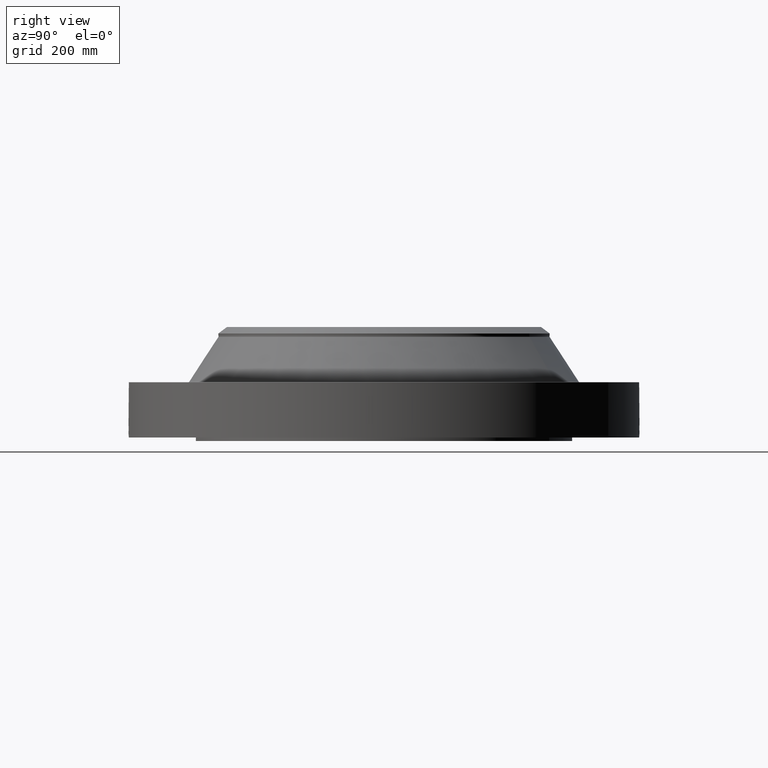
[diagram: clean part render]
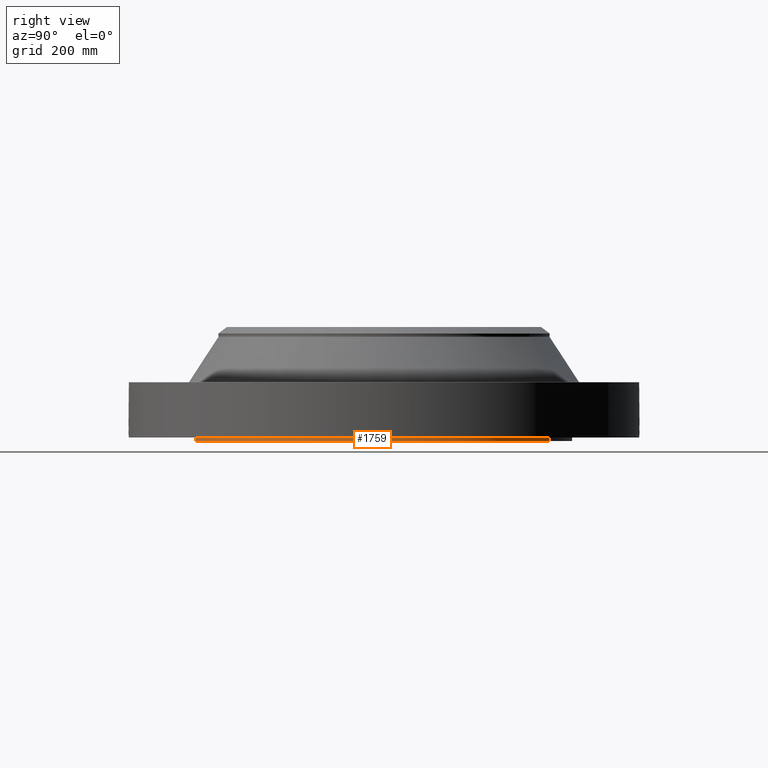
[diagram: same view with one face highlighted and labeled with its STEP entity id]
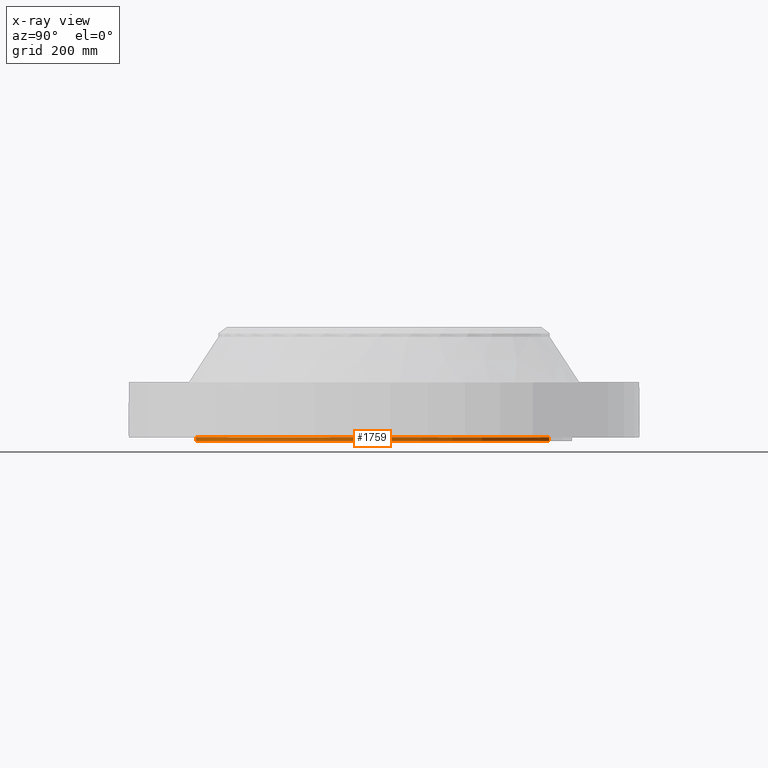
[diagram: x-ray of the same camera — body ghosted, the highlighted face saturated]
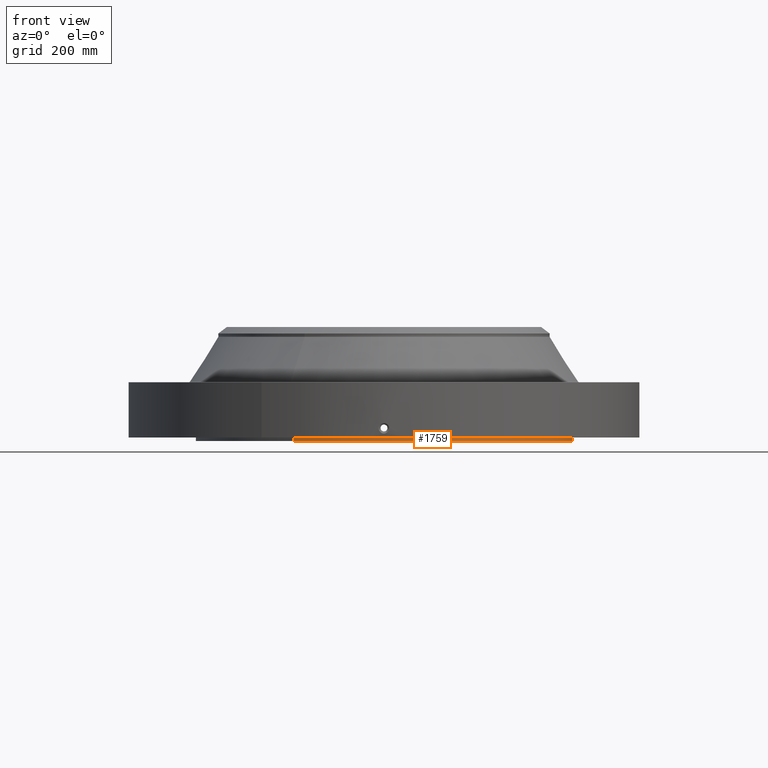
[diagram: same view with one face highlighted and labeled with its STEP entity id]
A machine part, right view. The second image highlights one B-rep face of the part: STEP entity #1759.
The next image is the same camera in x-ray: the body ghosted, the highlighted face saturated — about 0% of this face is hidden behind the body in this view.
A second angle (front view) of the same face is appended — the face is thin or edge-on in the first view.
In plain terms, the highlighted cylindrical surface (partial cylindrical patch) has radius 346.075 mm, axis along (0, 0, -1).
Its self-contained STEP definition (entity closure, byte-faithful):
#260=AXIS2_PLACEMENT_3D('Circle Axis2P3D',#258,#259,$) ;
#1732=AXIS2_PLACEMENT_3D('Cylinder Axis2P3D',#1729,#1730,#1731) ;
#1736=AXIS2_PLACEMENT_3D('Circle Axis2P3D',#1734,#1735,$) ;
#258=CARTESIAN_POINT('Axis2P3D Location',(0.,0.,0.250000000001)) ;
#262=CARTESIAN_POINT('Vertex',(6.53217296351,11.9570624058,0.250000000001)) ;
#264=CARTESIAN_POINT('Vertex',(-6.53217296351,-11.9570624058,0.250000000001)) ;
#1729=CARTESIAN_POINT('Axis2P3D Location',(0.,0.,4.12500000002)) ;
#1734=CARTESIAN_POINT('Axis2P3D Location',(0.,0.,1.67844740731E-015)) ;
#1738=CARTESIAN_POINT('Vertex',(6.53217296351,11.9570624058,1.67844740731E-015)) ;
#1740=CARTESIAN_POINT('Vertex',(-6.53217296351,-11.9570624058,1.67844740731E-015)) ;
#1743=CARTESIAN_POINT('Line Origine',(6.53217296351,11.9570624058,0.125000000001)) ;
#1748=CARTESIAN_POINT('Line Origine',(-6.53217296351,-11.9570624058,0.125000000001)) ;
#259=DIRECTION('Axis2P3D Direction',(0.,0.,-0.0393700787402)) ;
#1730=DIRECTION('Axis2P3D Direction',(0.,0.,-0.0393700787402)) ;
#1731=DIRECTION('Axis2P3D XDirection',(-0.0188750212049,-0.0345504945626,0.)) ;
#1735=DIRECTION('Axis2P3D Direction',(0.,0.,-0.0393700787402)) ;
#1744=DIRECTION('Vector Direction',(0.,0.,-0.0393700787402)) ;
#1749=DIRECTION('Vector Direction',(0.,0.,-0.0393700787402)) ;
#1745=VECTOR('Line Direction',#1744,0.0393700787402) ;
#1750=VECTOR('Line Direction',#1749,0.0393700787402) ;
#1754=ORIENTED_EDGE('',*,*,#1742,.F.) ;
#1755=ORIENTED_EDGE('',*,*,#1747,.T.) ;
#1756=ORIENTED_EDGE('',*,*,#266,.T.) ;
#1757=ORIENTED_EDGE('',*,*,#1752,.F.) ;
#1759=ADVANCED_FACE('PartBody',(#1758),#1733,.T.) ;
#261=CIRCLE('generated circle',#260,13.6250000001) ;
#1737=CIRCLE('generated circle',#1736,13.6250000001) ;
#1733=CYLINDRICAL_SURFACE('generated cylinder',#1732,13.6250000001) ;
#266=EDGE_CURVE('',#263,#265,#261,.T.) ;
#1742=EDGE_CURVE('',#1739,#1741,#1737,.T.) ;
#1747=EDGE_CURVE('',#1739,#263,#1746,.F.) ;
#1752=EDGE_CURVE('',#1741,#265,#1751,.F.) ;
#1753=EDGE_LOOP('',(#1754,#1755,#1756,#1757)) ;
#1758=FACE_OUTER_BOUND('',#1753,.T.) ;
#1746=LINE('Line',#1743,#1745) ;
#1751=LINE('Line',#1748,#1750) ;
#263=VERTEX_POINT('',#262) ;
#265=VERTEX_POINT('',#264) ;
#1739=VERTEX_POINT('',#1738) ;
#1741=VERTEX_POINT('',#1740) ;